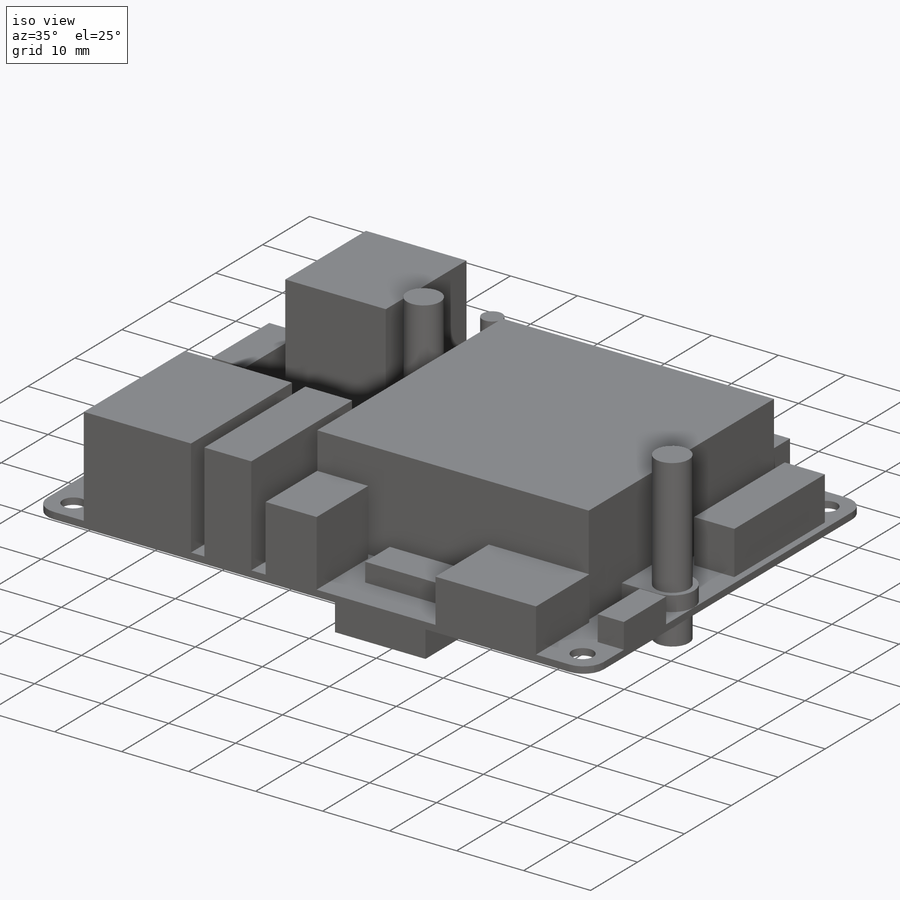
[diagram: iso view]
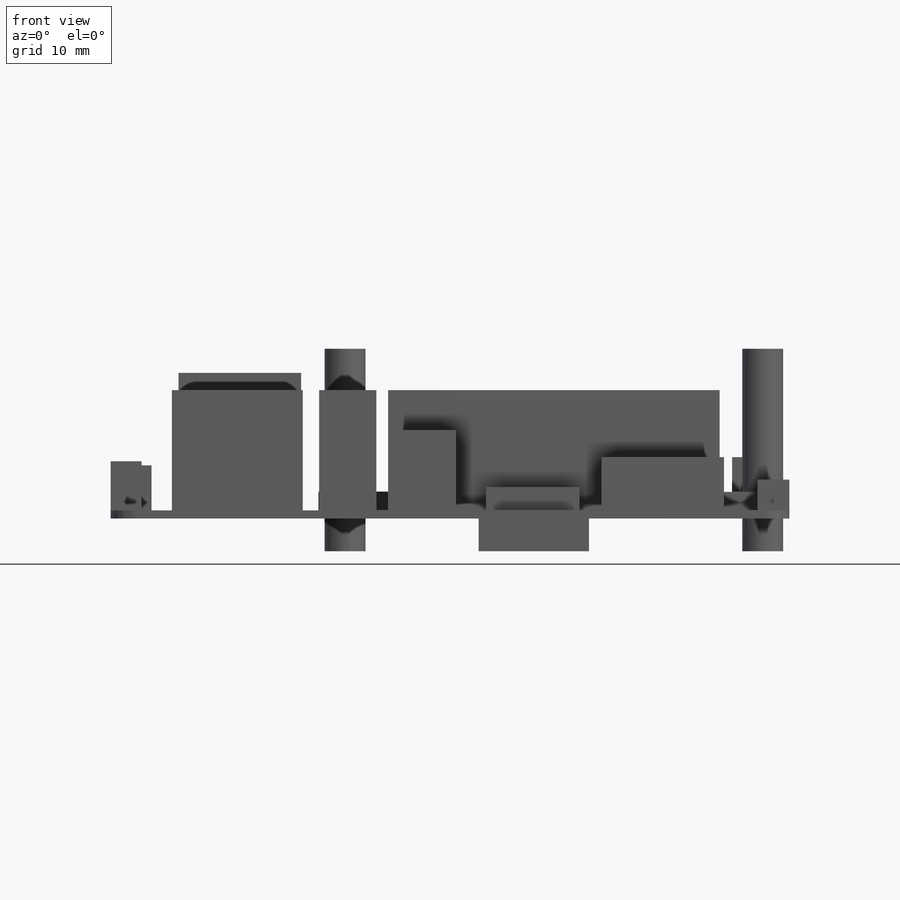
[diagram: front view]
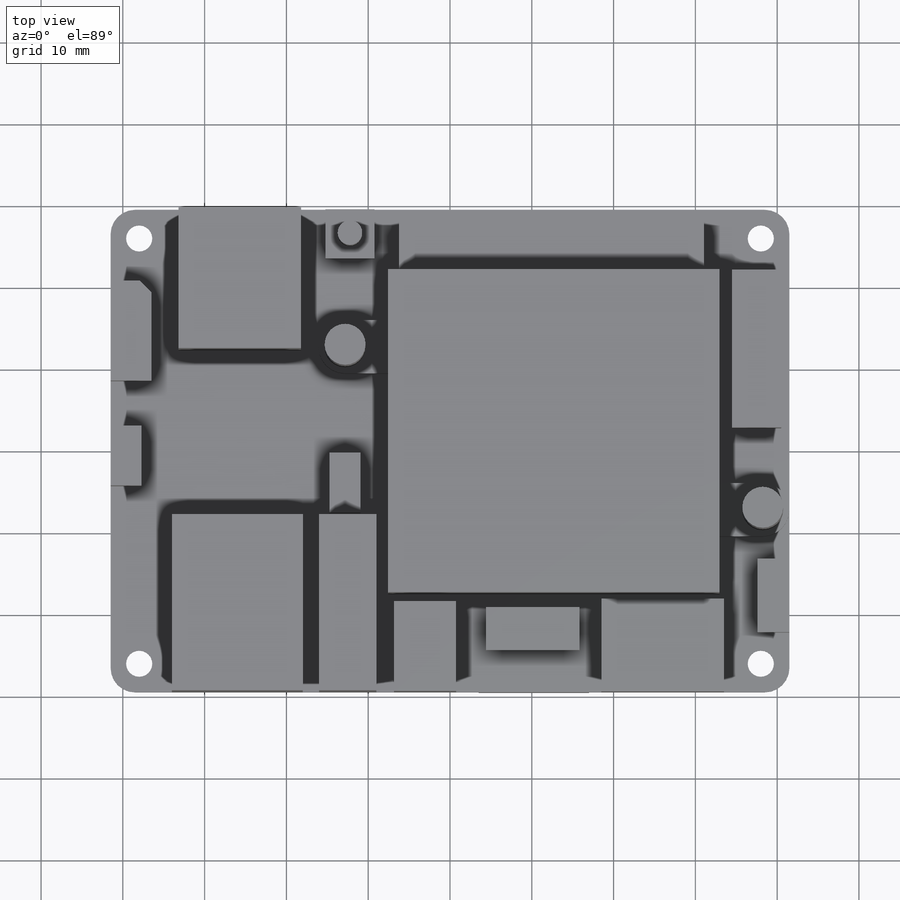
[diagram: top view]
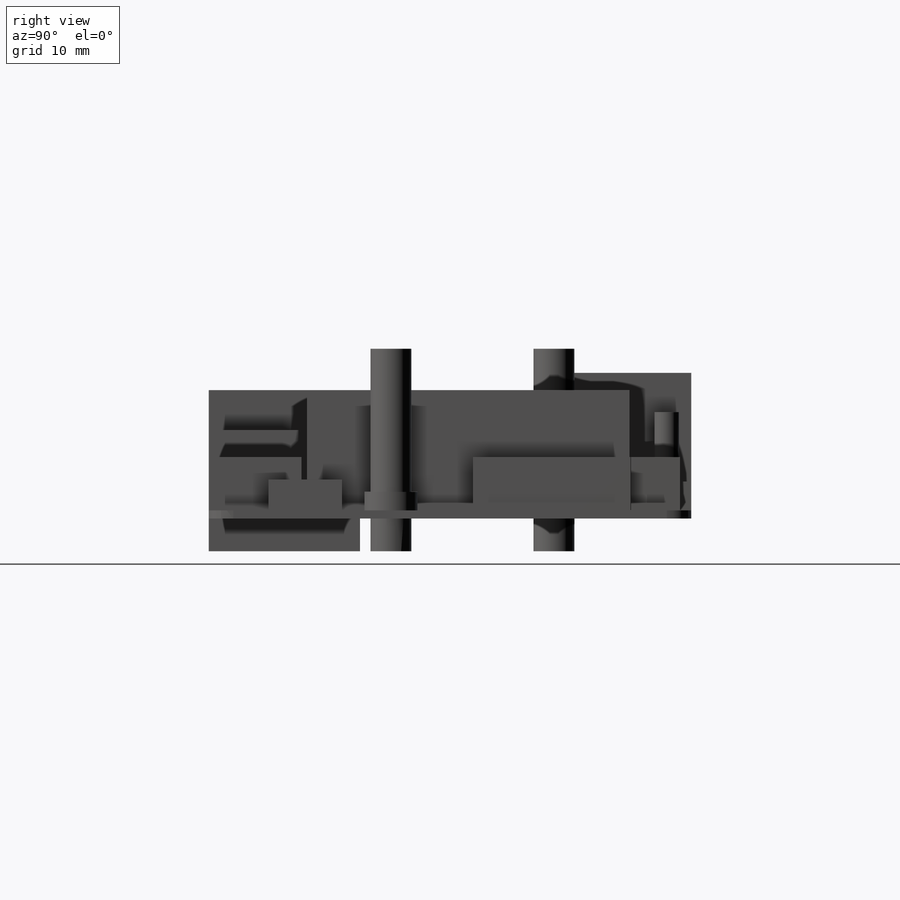
[diagram: right view]
SOLIDWORKS PART (.sldprt)
format: sldprt  version: not decoded by parser v0  size: 5,416,448 bytes
history: native  units: mm
features: sketch x23, extrude x19, plane x2, material x1, cut_extrude x1 (+13 scaffold rows collapsed)
feature tree (59):
  scaffold x13  (default folders/planes/origin — collapsed)
  material  "Silicon"
  sketch  "Sketch1"  dims[D3=3.0mm D1=83.0mm D2=59.0mm]
  extrude  "PCB Extrude"  Depth=1mm
  plane  "Plane_UnderSurface"  Offset=0.1mm
  plane  "Plane_AboveTop"  Offset=1mm
  sketch  "IMAGE_TOP_PADS"  dims[D1=53.0mm D2=83.0mm]
  sketch  "IMAGE_TOP_COMPONENTS"
  extrude  "Sketch Picture4"  Depth=83mm
  sketch  "IMAGE_BOTTOM_COMPONENTS"
  extrude  "Sketch Picture5"  Depth=83mm
  sketch  "Sketch3"  dims[c1.D1=3.2mm c1.D5=~3.366355mm c1.D2=52.0mm c1.D3=76.0mm c2.D1=0.0mm c2.D2=0.0mm c2.D3=0.0mm c2.D4=0.0mm c2.D5=0.0mm c2.D6=0.0mm c2.D7=0.0mm c2.D8=0.0mm c2.D9=0.0mm c3.D4=0.0mm]
  cut_extrude  "PCB Holes and Tabs"  [1 undecoded]
  sketch  "Gross Components"  dims[c1.D1=3.25mm c1.D2=3.25mm c1.D3=12.2mm c1.D4=5.0mm c1.D5=7.3mm c1.D6=3.8mm c1.D7=15.0mm c1.D8=22.0mm c1.D9=8.3mm c1.D10=6.0mm c1.D11=6.0mm c1.D12=16.0mm c1.D13=21.5mm c1.D14=7.5mm c1.D15=2.0mm c1.D16=7.0mm c1.D17=21.5mm c1.D18=15.0mm c1.D19=8.0mm c1.D20=11.4mm c1.D21=5.25mm c1.D22=2.0mm c1.D23=37.3mm c1.D24=1.4mm c1.D25=6.0mm c1.D26=6.0mm c1.D27=19.3mm c1.D28=7.3mm c1.D29=9.0mm c1.D30=1.0mm c1.D31=~3.558303mm c2.D31=45.0deg c2.D8=7.6mm]
  extrude  "UART Extrude"  Depth=5.5mm
  extrude  "Battery and Fan Header"  [1 undecoded]
  sketch  "Sketch4<3>"  dims[D1=6.0mm]
  extrude  "HeatSink_Fan"  [1 undecoded]
  sketch  "Sketch4<4>"  dims[D1=14.7mm]
  extrude  "PowerButton"  [1 undecoded]
  sketch  "Sketch4<6>"  dims[D1=3.5mm]
  sketch  "Sketch5"  dims[D1=3.0mm]
  extrude  "PowerButtonSwitch"  Depth=8.5mm
  extrude  "DCPowerJack"  [1 undecoded]
  sketch  "Sketch4<8>"  dims[D1=9.8mm]
  extrude  "HeatSinkMountTabs"  [1 undecoded]
  sketch  "Sketch4<11>"  dims[D1=2.25mm]
  sketch  "Sketch6"  dims[D1=5.0mm]
  extrude  "HeatSinkSprings"  Depth=17.5mm
  extrude  "microSD"  [1 undecoded]
  sketch  "Sketch4<13>"  dims[D1=2.8mm]
  sketch  "Sketch7"  dims[D4=5.0mm D1=18.5mm D2=13.5mm D3=24.5mm]
  extrude  "UnderSide"  Depth=4mm
  extrude  "Ethernet"  [1 undecoded]
  sketch  "Gross Components<15>"  dims[D1=14.7mm]
  extrude  "USBx2"  [1 undecoded]
  sketch  "Gross Components<16>"  dims[D1=16.8mm]
  extrude  "USBvertical"  [1 undecoded]
  sketch  "Gross Components<17>"  dims[D1=14.7mm]
  extrude  "HDMI"  [1 undecoded]
  sketch  "Gross Components<18>"  dims[D1=6.5mm]
  extrude  "DIP"  [1 undecoded]
  sketch  "Gross Components<19>"  dims[D1=3.75mm]
  extrude  "PinHeaders"  [1 undecoded]
  sketch  "Gross Components<21>"  dims[D1=6.5mm]
  sketch  "Sketch9"
  sketch  "Sketch10"
decode coverage: 26 of 43 modeling features carry decoded parameters
note: ~ marks probable driven/reference dimensions
note: 13 parameter values undecoded
summary: no parameter record found for 13 features
note: suppression state not decoded; provenance and decode notes live in map.json
